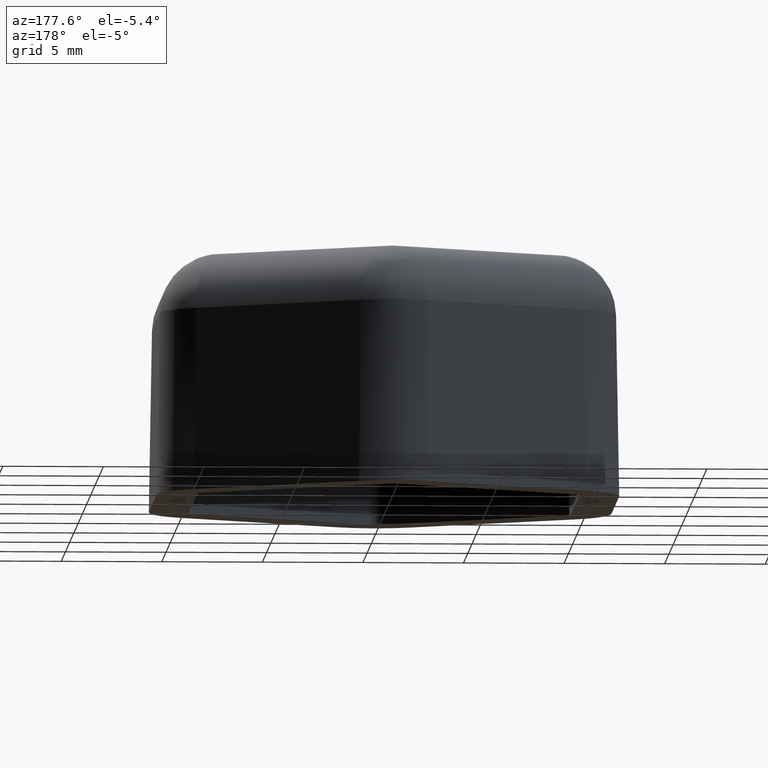
[diagram: clean part render]
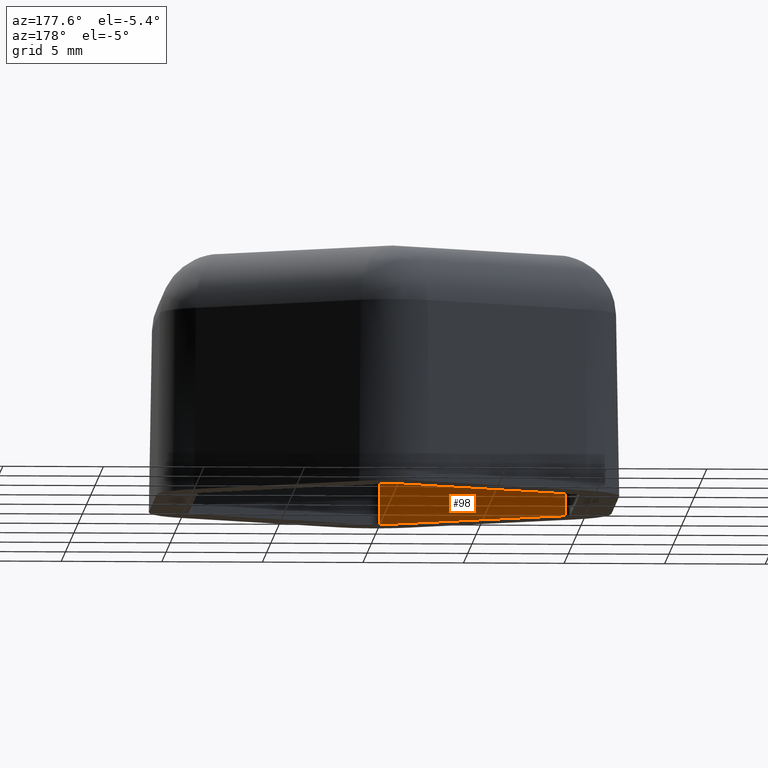
[diagram: same view with one face highlighted and labeled with its STEP entity id]
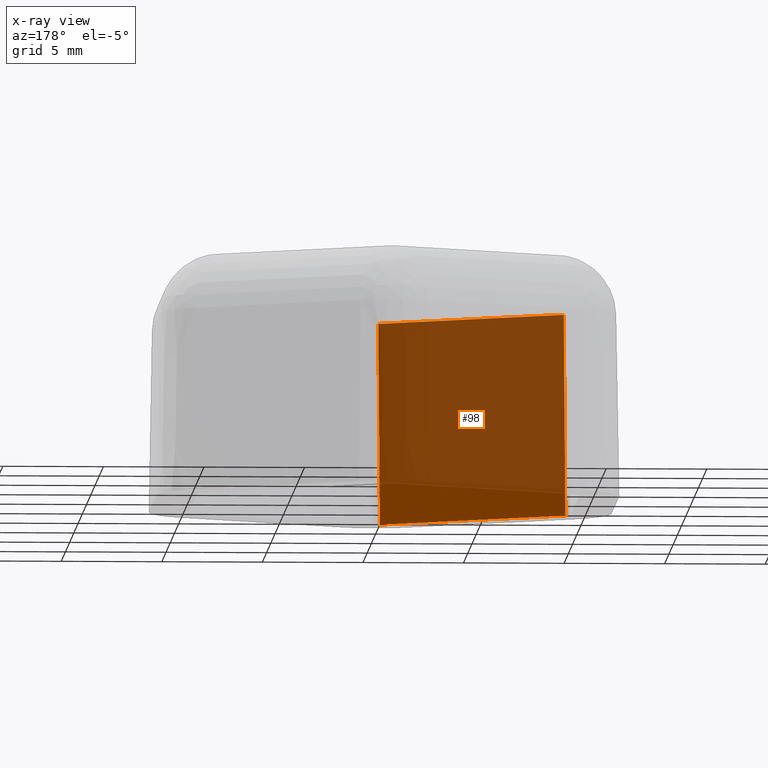
[diagram: x-ray of the same camera — body ghosted, the highlighted face saturated]
A machine part, auxiliary view. The second image highlights one B-rep face of the part: STEP entity #98.
The next image is the same camera in x-ray: the body ghosted, the highlighted face saturated — about 84% of this face is hidden behind the body in this view.
In plain terms, the highlighted planar face has unit normal (-0.4999, -0.8659, 0.0175).
Its self-contained STEP definition (entity closure, byte-faithful):
#98 = ADVANCED_FACE( '', ( #162 ), #163, .F. );
#162 = FACE_OUTER_BOUND( '', #307, .T. );
#163 = PLANE( '', #308 );
#307 = EDGE_LOOP( '', ( #593, #594, #595, #596 ) );
#308 = AXIS2_PLACEMENT_3D( '', #597, #598, #599 );
#593 = ORIENTED_EDGE( '', *, *, #708, .T. );
#594 = ORIENTED_EDGE( '', *, *, #778, .F. );
#595 = ORIENTED_EDGE( '', *, *, #775, .F. );
#596 = ORIENTED_EDGE( '', *, *, #779, .T. );
#597 = CARTESIAN_POINT( '', ( -14.1250000000000, -2.81458256229944, -1.72975647477411E-015 ) );
#598 = DIRECTION( '', ( -0.499923847578195, -0.865893503920754, 0.0174524064372834 ) );
#599 = DIRECTION( '', ( -0.866025403784439, 0.500000000000000, -1.06021718582484E-016 ) );
#708 = EDGE_CURVE( '', #815, #813, #816, .T. );
#775 = EDGE_CURVE( '', #928, #930, #931, .T. );
#778 = EDGE_CURVE( '', #930, #813, #934, .T. );
#779 = EDGE_CURVE( '', #928, #815, #935, .T. );
#813 = VERTEX_POINT( '', #976 );
#815 = VERTEX_POINT( '', #978 );
#816 = LINE( '', #979, #980 );
#928 = VERTEX_POINT( '', #1128 );
#930 = VERTEX_POINT( '', #1130 );
#931 = LINE( '', #1131, #1132 );
#934 = LINE( '', #1135, #1136 );
#935 = LINE( '', #1137, #1138 );
#976 = CARTESIAN_POINT( '', ( -9.25000000000000, -5.62916512459886, -1.13276087728570E-015 ) );
#978 = CARTESIAN_POINT( '', ( -0.249999999999999, -10.8253175473055, -3.06151588455593E-017 ) );
#979 = CARTESIAN_POINT( '', ( -13.7500000000000, -3.03108891324555, -1.68383373650577E-015 ) );
#980 = VECTOR( '', #1180, 1000.00000000000 );
#1128 = CARTESIAN_POINT( '', ( -0.162724675358912, -10.6741522507801, 10.0000000000000 ) );
#1130 = CARTESIAN_POINT( '', ( -9.16272467535891, -5.47799982807343, 10.0000000000000 ) );
#1131 = CARTESIAN_POINT( '', ( -13.6627246753589, -2.87992361672011, 10.0000000000000 ) );
#1132 = VECTOR( '', #1307, 1000.00000000000 );
#1135 = CARTESIAN_POINT( '', ( -9.25000000000000, -5.62916512459886, -1.08533425664381E-015 ) );
#1136 = VECTOR( '', #1314, 1000.00000000000 );
#1137 = CARTESIAN_POINT( '', ( -0.249999999999999, -10.8253175473055, -4.12848174510775E-018 ) );
#1138 = VECTOR( '', #1315, 1000.00000000000 );
#1180 = DIRECTION( '', ( -0.866025403784439, 0.500000000000000, -1.07022971953583E-016 ) );
#1307 = DIRECTION( '', ( -0.866025403784439, 0.500000000000000, -1.07022971953583E-016 ) );
#1314 = DIRECTION( '', ( -0.00872620321864163, -0.0151142273318586, -0.999847695156391 ) );
#1315 = DIRECTION( '', ( -0.00872620321864165, -0.0151142273318586, -0.999847695156391 ) );